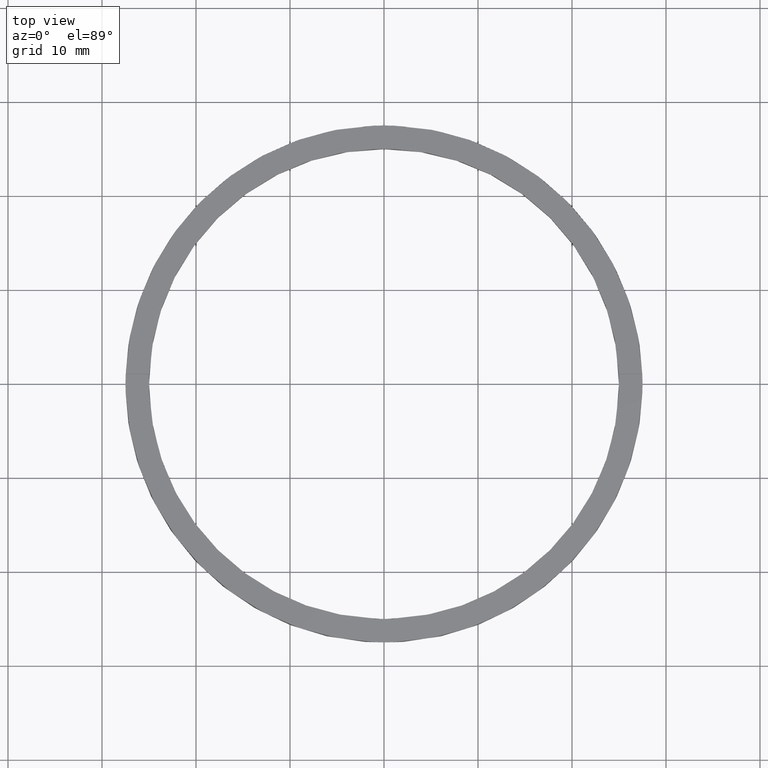
[diagram: clean part render]
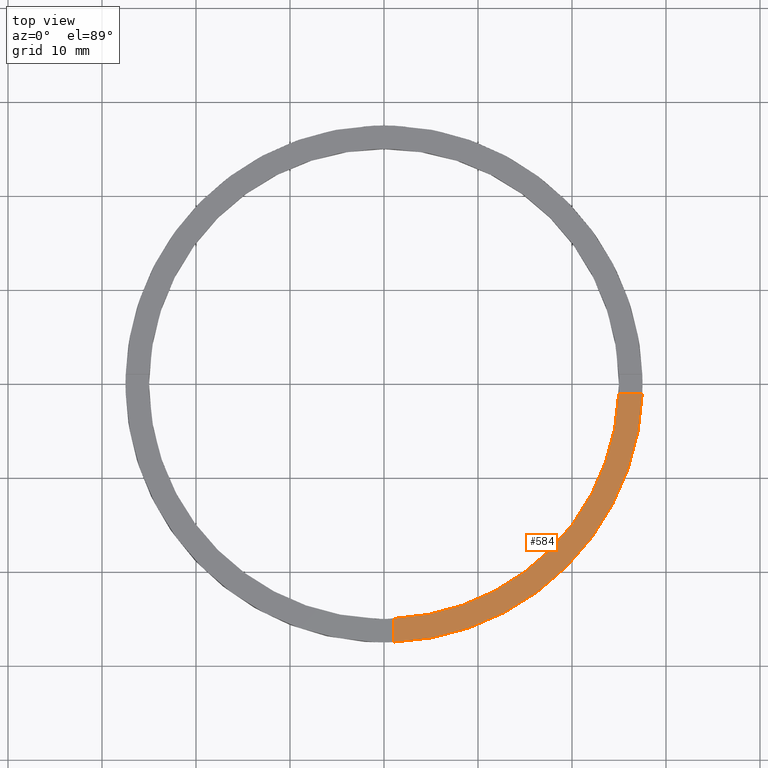
[diagram: same view with one face highlighted and labeled with its STEP entity id]
A machine part, top view. The second image highlights one B-rep face of the part: STEP entity #584.
In plain terms, the highlighted planar face has unit normal (0, 0, 1).
Its self-contained STEP definition (entity closure, byte-faithful):
#9 = DIRECTION ( 'NONE',  ( 1.000000000000000000, 0.000000000000000000, 0.000000000000000000 ) ) ;
#36 = AXIS2_PLACEMENT_3D ( 'NONE', #65, #618, #9 ) ;
#47 = CARTESIAN_POINT ( 'NONE',  ( 27.48181216732258392, -1.000000000000157208, 2.500000000000000000 ) ) ;
#65 = CARTESIAN_POINT ( 'NONE',  ( 0.000000000000000000, 0.000000000000000000, 2.500000000000000000 ) ) ;
#71 = PLANE ( 'NONE',  #570 ) ;
#118 = ORIENTED_EDGE ( 'NONE', *, *, #469, .F. ) ;
#144 = VERTEX_POINT ( 'NONE', #680 ) ;
#147 = CARTESIAN_POINT ( 'NONE',  ( 0.000000000000000000, 0.000000000000000000, 2.500000000000000000 ) ) ;
#209 = CARTESIAN_POINT ( 'NONE',  ( 17.49999999999999645, -1.000000000000157430, 2.500000000000000000 ) ) ;
#211 = DIRECTION ( 'NONE',  ( 0.000000000000000000, 0.000000000000000000, 1.000000000000000000 ) ) ;
#250 = DIRECTION ( 'NONE',  ( 1.000000000000000000, 0.000000000000000000, 0.000000000000000000 ) ) ;
#273 = VECTOR ( 'NONE', #568, 1000.000000000000000 ) ;
#279 = EDGE_CURVE ( 'NONE', #144, #368, #524, .T. ) ;
#286 = AXIS2_PLACEMENT_3D ( 'NONE', #658, #401, #250 ) ;
#296 = CIRCLE ( 'NONE', #286, 27.50000000000000000 ) ;
#301 = CIRCLE ( 'NONE', #36, 25.00000000000000000 ) ;
#318 = EDGE_CURVE ( 'NONE', #623, #354, #546, .T. ) ;
#340 = ORIENTED_EDGE ( 'NONE', *, *, #279, .F. ) ;
#354 = VERTEX_POINT ( 'NONE', #415 ) ;
#368 = VERTEX_POINT ( 'NONE', #47 ) ;
#401 = DIRECTION ( 'NONE',  ( 0.000000000000000000, 0.000000000000000000, 1.000000000000000000 ) ) ;
#412 = ORIENTED_EDGE ( 'NONE', *, *, #318, .F. ) ;
#415 = CARTESIAN_POINT ( 'NONE',  ( 0.9999999999998397948, -24.97999199359360034, 2.500000000000000000 ) ) ;
#419 = ORIENTED_EDGE ( 'NONE', *, *, #425, .T. ) ;
#425 = EDGE_CURVE ( 'NONE', #623, #368, #296, .T. ) ;
#469 = EDGE_CURVE ( 'NONE', #354, #144, #301, .T. ) ;
#501 = FACE_OUTER_BOUND ( 'NONE', #689, .T. ) ;
#524 = LINE ( 'NONE', #209, #273 ) ;
#546 = LINE ( 'NONE', #771, #561 ) ;
#561 = VECTOR ( 'NONE', #730, 1000.000000000000000 ) ;
#568 = DIRECTION ( 'NONE',  ( 1.000000000000000000, 4.336808689942018352E-17, 0.000000000000000000 ) ) ;
#570 = AXIS2_PLACEMENT_3D ( 'NONE', #147, #211, #651 ) ;
#578 = CARTESIAN_POINT ( 'NONE',  ( 0.9999999999998400169, -27.48181216732259458, 2.500000000000000000 ) ) ;
#584 = ADVANCED_FACE ( 'NONE', ( #501 ), #71, .T. ) ;
#618 = DIRECTION ( 'NONE',  ( 0.000000000000000000, 0.000000000000000000, 1.000000000000000000 ) ) ;
#623 = VERTEX_POINT ( 'NONE', #578 ) ;
#651 = DIRECTION ( 'NONE',  ( 1.000000000000000000, 0.000000000000000000, -0.000000000000000000 ) ) ;
#658 = CARTESIAN_POINT ( 'NONE',  ( 0.000000000000000000, 0.000000000000000000, 2.500000000000000000 ) ) ;
#680 = CARTESIAN_POINT ( 'NONE',  ( 24.97999199359358968, -1.000000000000157208, 2.500000000000000000 ) ) ;
#689 = EDGE_LOOP ( 'NONE', ( #340, #118, #412, #419 ) ) ;
#730 = DIRECTION ( 'NONE',  ( -1.301042606982605567E-16, 1.000000000000000000, -0.000000000000000000 ) ) ;
#771 = CARTESIAN_POINT ( 'NONE',  ( 0.9999999999998389066, -17.50000000000018119, 2.500000000000000000 ) ) ;